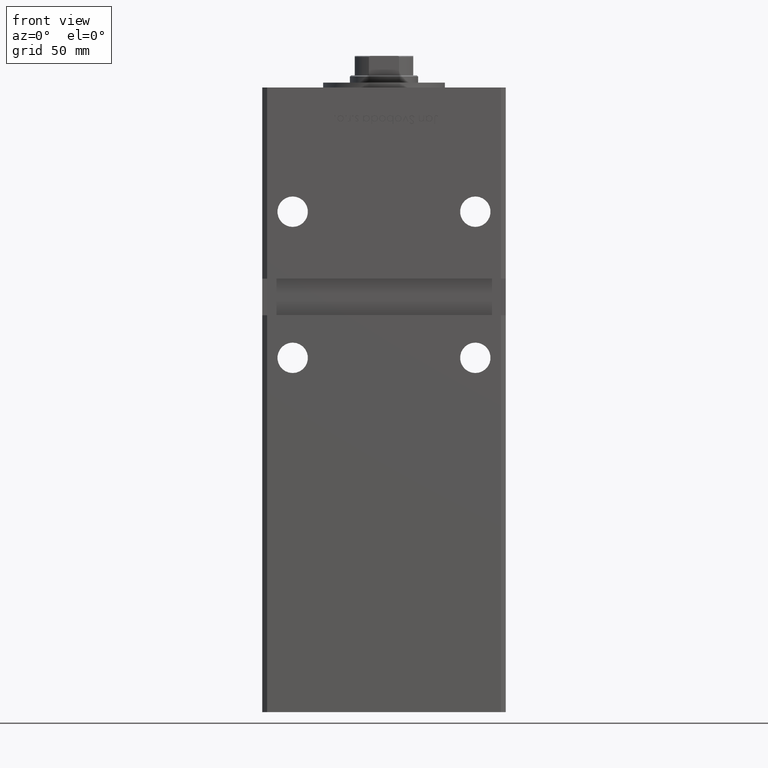
[diagram: clean part render]
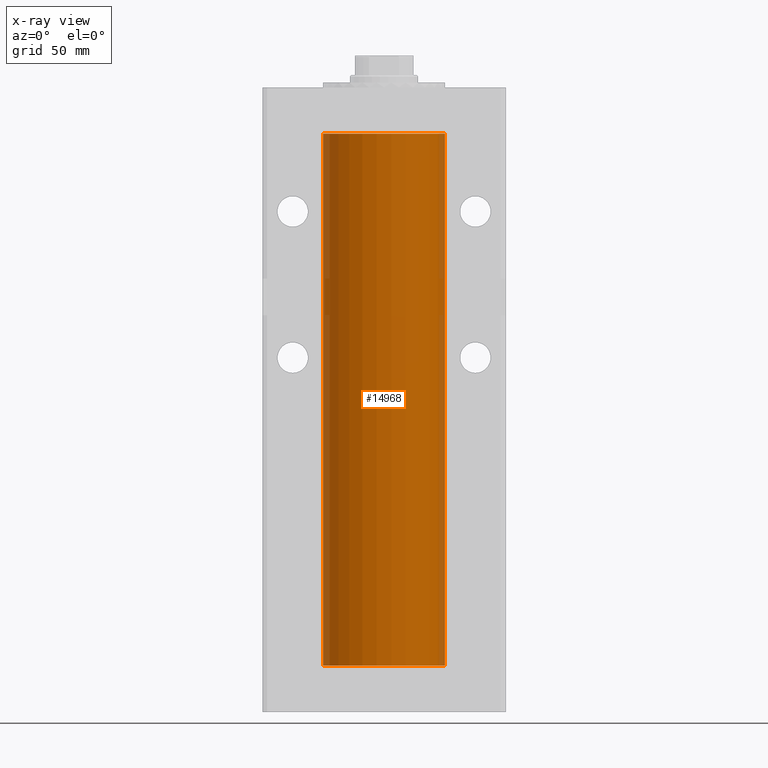
[diagram: x-ray — body ghosted, one internal face saturated and labeled with its STEP entity id]
A machine part, front view, then the same camera in x-ray: the body is ghosted and one INTERNAL B-rep face — a face not visible from any outside direction — is saturated and labeled: STEP entity #14968.
In plain terms, the highlighted cylindrical surface (partial cylindrical patch) has radius 25 mm, axis along (-0, -0, -1).
Its self-contained STEP definition (entity closure, byte-faithful):
#238 = CARTESIAN_POINT ( 'NONE',  ( -25.00000000000000000, 0.000000000000000000, 0.000000000000000000 ) ) ;
#346 = VERTEX_POINT ( 'NONE', #238 ) ;
#4104 = EDGE_CURVE ( 'NONE', #51266, #346, #7851, .T. ) ;
#6164 = DIRECTION ( 'NONE',  ( -0.000000000000000000, -0.000000000000000000, -1.000000000000000000 ) ) ;
#7396 = CARTESIAN_POINT ( 'NONE',  ( 0.000000000000000000, 0.000000000000000000, 218.5000000000000000 ) ) ;
#7851 = LINE ( 'NONE', #36384, #36069 ) ;
#8671 = CIRCLE ( 'NONE', #29316, 25.00000000000000000 ) ;
#14968 = ADVANCED_FACE ( 'NONE', ( #44734 ), #32601, .F. ) ;
#15107 = DIRECTION ( 'NONE',  ( 1.000000000000000000, 0.000000000000000000, 0.000000000000000000 ) ) ;
#16719 = DIRECTION ( 'NONE',  ( -1.000000000000000000, 0.000000000000000000, 0.000000000000000000 ) ) ;
#16959 = ORIENTED_EDGE ( 'NONE', *, *, #44711, .F. ) ;
#17326 = CARTESIAN_POINT ( 'NONE',  ( 25.00000000000000000, 3.061616997868383043E-15, 218.5000000000000000 ) ) ;
#17749 = LINE ( 'NONE', #21510, #45312 ) ;
#19413 = CARTESIAN_POINT ( 'NONE',  ( 25.00000000000000000, 3.061616997868383043E-15, 0.000000000000000000 ) ) ;
#21510 = CARTESIAN_POINT ( 'NONE',  ( 25.00000000000000000, 3.061616997868383043E-15, 218.5000000000000000 ) ) ;
#23778 = EDGE_LOOP ( 'NONE', ( #36681, #51253, #16959, #30014 ) ) ;
#24780 = CARTESIAN_POINT ( 'NONE',  ( 0.000000000000000000, 0.000000000000000000, 218.5000000000000000 ) ) ;
#29244 = CARTESIAN_POINT ( 'NONE',  ( -25.00000000000000000, 0.000000000000000000, 218.5000000000000000 ) ) ;
#29316 = AXIS2_PLACEMENT_3D ( 'NONE', #7396, #44040, #53162 ) ;
#30014 = ORIENTED_EDGE ( 'NONE', *, *, #4104, .F. ) ;
#32289 = AXIS2_PLACEMENT_3D ( 'NONE', #24780, #45520, #16719 ) ;
#32601 = CYLINDRICAL_SURFACE ( 'NONE', #32289, 25.00000000000000000 ) ;
#34766 = CARTESIAN_POINT ( 'NONE',  ( 0.000000000000000000, 0.000000000000000000, 0.000000000000000000 ) ) ;
#36069 = VECTOR ( 'NONE', #36640, 1000.000000000000000 ) ;
#36384 = CARTESIAN_POINT ( 'NONE',  ( -25.00000000000000000, 0.000000000000000000, 218.5000000000000000 ) ) ;
#36640 = DIRECTION ( 'NONE',  ( -0.000000000000000000, -0.000000000000000000, -1.000000000000000000 ) ) ;
#36681 = ORIENTED_EDGE ( 'NONE', *, *, #40089, .T. ) ;
#39362 = AXIS2_PLACEMENT_3D ( 'NONE', #34766, #52251, #15107 ) ;
#40089 = EDGE_CURVE ( 'NONE', #51266, #49748, #8671, .T. ) ;
#42634 = EDGE_CURVE ( 'NONE', #49748, #44755, #17749, .T. ) ;
#44040 = DIRECTION ( 'NONE',  ( -0.000000000000000000, 0.000000000000000000, 1.000000000000000000 ) ) ;
#44711 = EDGE_CURVE ( 'NONE', #346, #44755, #47142, .T. ) ;
#44734 = FACE_OUTER_BOUND ( 'NONE', #23778, .T. ) ;
#44755 = VERTEX_POINT ( 'NONE', #19413 ) ;
#45312 = VECTOR ( 'NONE', #6164, 1000.000000000000000 ) ;
#45520 = DIRECTION ( 'NONE',  ( -0.000000000000000000, -0.000000000000000000, -1.000000000000000000 ) ) ;
#47142 = CIRCLE ( 'NONE', #39362, 25.00000000000000000 ) ;
#49748 = VERTEX_POINT ( 'NONE', #17326 ) ;
#51253 = ORIENTED_EDGE ( 'NONE', *, *, #42634, .T. ) ;
#51266 = VERTEX_POINT ( 'NONE', #29244 ) ;
#52251 = DIRECTION ( 'NONE',  ( -0.000000000000000000, 0.000000000000000000, 1.000000000000000000 ) ) ;
#53162 = DIRECTION ( 'NONE',  ( 1.000000000000000000, 0.000000000000000000, 0.000000000000000000 ) ) ;